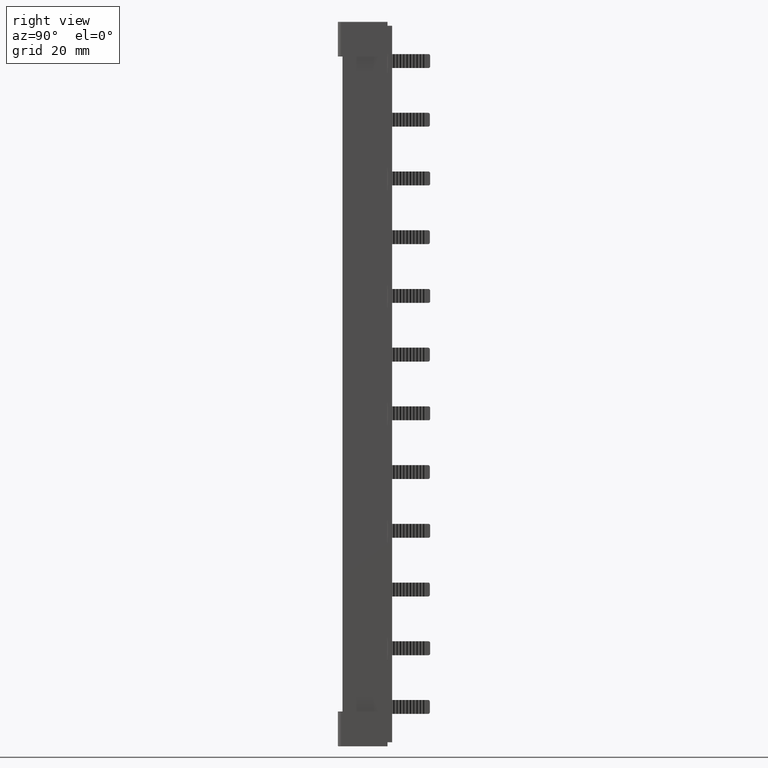
[diagram: clean part render]
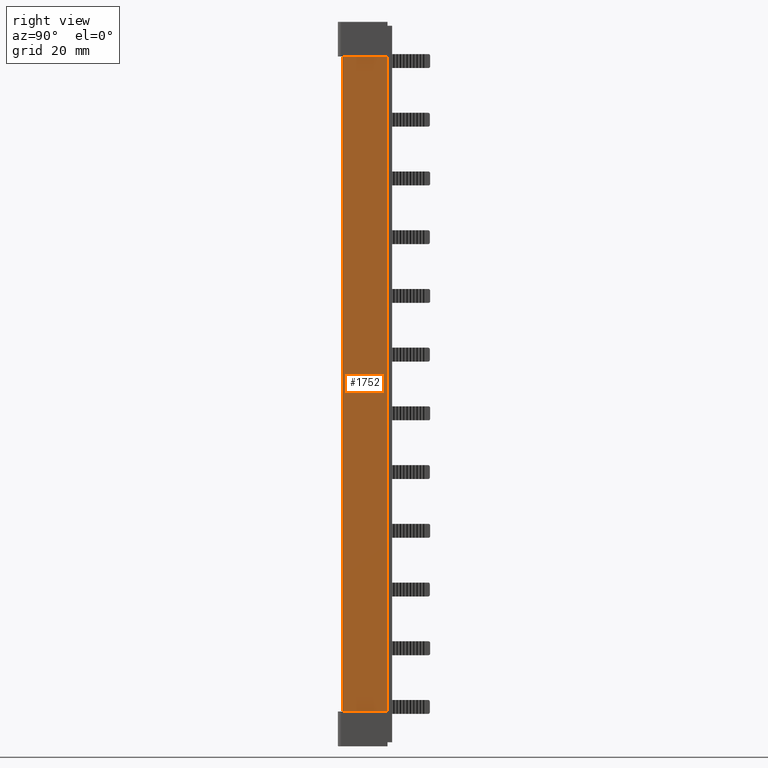
[diagram: same view with one face highlighted and labeled with its STEP entity id]
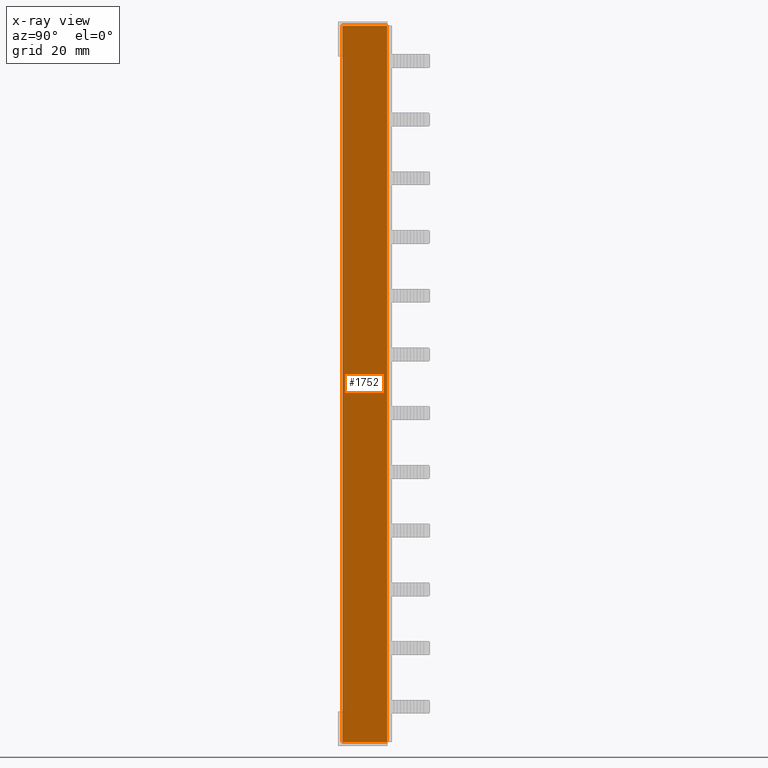
[diagram: x-ray of the same camera — body ghosted, the highlighted face saturated]
A machine part, right view. The second image highlights one B-rep face of the part: STEP entity #1752.
The next image is the same camera in x-ray: the body ghosted, the highlighted face saturated — about 0% of this face is hidden behind the body in this view.
In plain terms, the highlighted planar face has unit normal (-1, 0, 0).
Its self-contained STEP definition (entity closure, byte-faithful):
#108 = CARTESIAN_POINT ( 'NONE',  ( 9.599999999999830900, 0.01270166487699831400, 217.7999999999939900 ) ) ;
#111 = CARTESIAN_POINT ( 'NONE',  ( 9.599999999999830900, 0.004233506201478350200, 217.7999684908471900 ) ) ;
#112 = CARTESIAN_POINT ( 'NONE',  ( 9.599999999999830900, 0.008467653317914563100, 217.7999999999933600 ) ) ;
#114 = CARTESIAN_POINT ( 'NONE',  ( 9.599999999999830900, -3.526380727646465500E-014, 217.7999030758346100 ) ) ;
#1752 = ADVANCED_FACE ( 'NONE', ( #15258 ), #15243, .F. ) ;
#2004 = EDGE_CURVE ( 'NONE', #17433, #17431, #7644, .T. ) ;
#2005 = EDGE_CURVE ( 'NONE', #17467, #17431, #9201, .T. ) ;
#2006 = EDGE_CURVE ( 'NONE', #17400, #17467, #7665, .T. ) ;
#2007 = EDGE_CURVE ( 'NONE', #17425, #17421, #7674, .T. ) ;
#2059 = EDGE_CURVE ( 'NONE', #17421, #17400, #15334, .T. ) ;
#2074 = EDGE_CURVE ( 'NONE', #17425, #17433, #9244, .T. ) ;
#7644 = LINE ( 'NONE', #7675, #19810 ) ;
#7650 = CARTESIAN_POINT ( 'NONE',  ( 9.599999999999830900, 0.008467653321574595400, 1.200000000006624000 ) ) ;
#7660 = DIRECTION ( 'NONE',  ( -0.0000000000000000000, 0.0000000000000000000, -1.000000000000000000 ) ) ;
#7665 = LINE ( 'NONE', #7693, #19812 ) ;
#7670 = CARTESIAN_POINT ( 'NONE',  ( 9.599999999999830900, 0.004233506203319358500, 1.200031509152818400 ) ) ;
#7671 = DIRECTION ( 'NONE',  ( -0.0000000000000000000, -1.000000000000000000, 0.0000000000000000000 ) ) ;
#7674 = LINE ( 'NONE', #7689, #19858 ) ;
#7675 = CARTESIAN_POINT ( 'NONE',  ( 9.599999999999830900, 0.0000000000000000000, 219.0000000000000000 ) ) ;
#7684 = DIRECTION ( 'NONE',  ( 0.0000000000000000000, 1.000000000000000000, -0.0000000000000000000 ) ) ;
#7689 = CARTESIAN_POINT ( 'NONE',  ( 9.599999999999830900, 0.0000000000000000000, 217.7999999999946400 ) ) ;
#7690 = CARTESIAN_POINT ( 'NONE',  ( 9.599999999999830900, 0.01270166487966089200, 1.200000000006652200 ) ) ;
#7692 = CARTESIAN_POINT ( 'NONE',  ( 9.599999999999830900, -2.393351313610649900E-014, 1.200096924165460900 ) ) ;
#7693 = CARTESIAN_POINT ( 'NONE',  ( 9.599999999999830900, 0.0000000000000000000, 1.200000000006522500 ) ) ;
#9201 = B_SPLINE_CURVE_WITH_KNOTS ( 'NONE', 3,
 ( #7690, #7650, #7670, #7692 ),
 .UNSPECIFIED., .F., .F.,
 ( 4, 4 ),
 ( 2.812624332997590500E-015, 1.270203468267316200E-005 ),
 .UNSPECIFIED. ) ;
#9244 = B_SPLINE_CURVE_WITH_KNOTS ( 'NONE', 3,
 ( #108, #112, #111, #114 ),
 .UNSPECIFIED., .F., .F.,
 ( 4, 4 ),
 ( 8.385626177817573400E-018, 1.270203467720543800E-005 ),
 .UNSPECIFIED. ) ;
#12195 = EDGE_LOOP ( 'NONE', ( #17600, #17704, #17696, #17670, #17658, #17678 ) ) ;
#15243 = PLANE ( 'NONE',  #19649 ) ;
#15246 = DIRECTION ( 'NONE',  ( -1.000000000000000000, 0.0000000000000000000, 0.0000000000000000000 ) ) ;
#15258 = FACE_OUTER_BOUND ( 'NONE', #12195, .T. ) ;
#15259 = DIRECTION ( 'NONE',  ( 0.0000000000000000000, 0.0000000000000000000, 1.000000000000000000 ) ) ;
#15284 = CARTESIAN_POINT ( 'NONE',  ( 9.599999999999830900, 0.0000000000000000000, 219.0000000000000000 ) ) ;
#15334 = LINE ( 'NONE', #15342, #19106 ) ;
#15342 = CARTESIAN_POINT ( 'NONE',  ( 9.599999999999830900, 13.49999999999998400, 219.0000000000000000 ) ) ;
#15343 = DIRECTION ( 'NONE',  ( -0.0000000000000000000, -0.0000000000000000000, -1.000000000000000000 ) ) ;
#17400 = VERTEX_POINT ( 'NONE', #20406 ) ;
#17421 = VERTEX_POINT ( 'NONE', #20396 ) ;
#17425 = VERTEX_POINT ( 'NONE', #20369 ) ;
#17431 = VERTEX_POINT ( 'NONE', #20382 ) ;
#17433 = VERTEX_POINT ( 'NONE', #20363 ) ;
#17467 = VERTEX_POINT ( 'NONE', #20435 ) ;
#17600 = ORIENTED_EDGE ( 'NONE', *, *, #2004, .T. ) ;
#17658 = ORIENTED_EDGE ( 'NONE', *, *, #2007, .F. ) ;
#17670 = ORIENTED_EDGE ( 'NONE', *, *, #2059, .F. ) ;
#17678 = ORIENTED_EDGE ( 'NONE', *, *, #2074, .T. ) ;
#17696 = ORIENTED_EDGE ( 'NONE', *, *, #2006, .F. ) ;
#17704 = ORIENTED_EDGE ( 'NONE', *, *, #2005, .F. ) ;
#19106 = VECTOR ( 'NONE', #15343, 1000.000000000000000 ) ;
#19649 = AXIS2_PLACEMENT_3D ( 'NONE', #15284, #15246, #15259 ) ;
#19810 = VECTOR ( 'NONE', #7660, 1000.000000000000000 ) ;
#19812 = VECTOR ( 'NONE', #7671, 1000.000000000000000 ) ;
#19858 = VECTOR ( 'NONE', #7684, 1000.000000000000000 ) ;
#20363 = CARTESIAN_POINT ( 'NONE',  ( 9.599999999999830900, -3.526380727646465500E-014, 217.7999030758346100 ) ) ;
#20369 = CARTESIAN_POINT ( 'NONE',  ( 9.599999999999830900, 0.01270166487699831400, 217.7999999999939900 ) ) ;
#20382 = CARTESIAN_POINT ( 'NONE',  ( 9.599999999999830900, -2.393351313610649900E-014, 1.200096924165460900 ) ) ;
#20396 = CARTESIAN_POINT ( 'NONE',  ( 9.599999999999830900, 13.49999999999998400, 217.7999999999942100 ) ) ;
#20406 = CARTESIAN_POINT ( 'NONE',  ( 9.599999999999830900, 13.49999999999998400, 1.200000000006563600 ) ) ;
#20435 = CARTESIAN_POINT ( 'NONE',  ( 9.599999999999830900, 0.01270166487966089200, 1.200000000006652200 ) ) ;